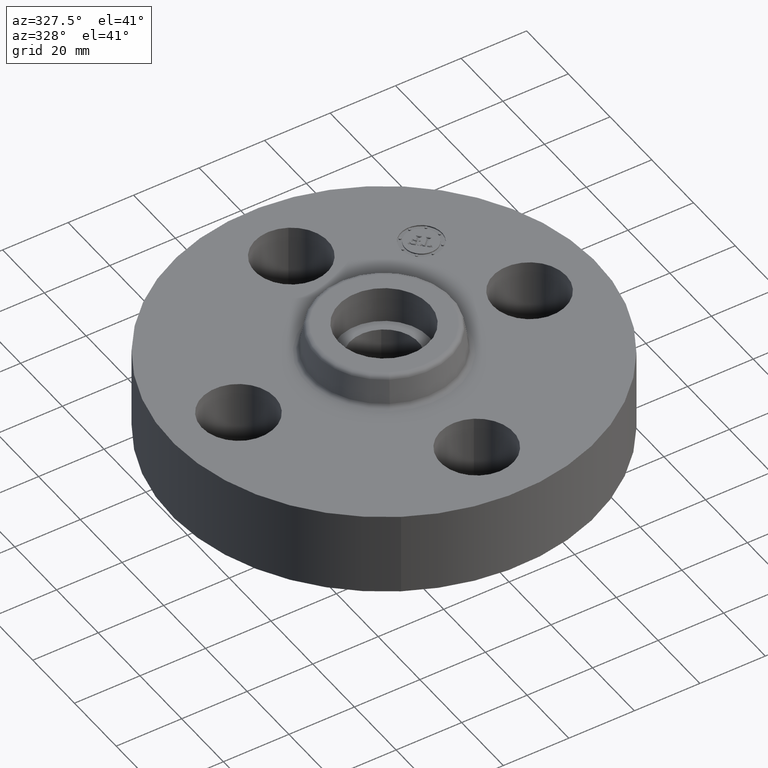
[diagram: clean part render]
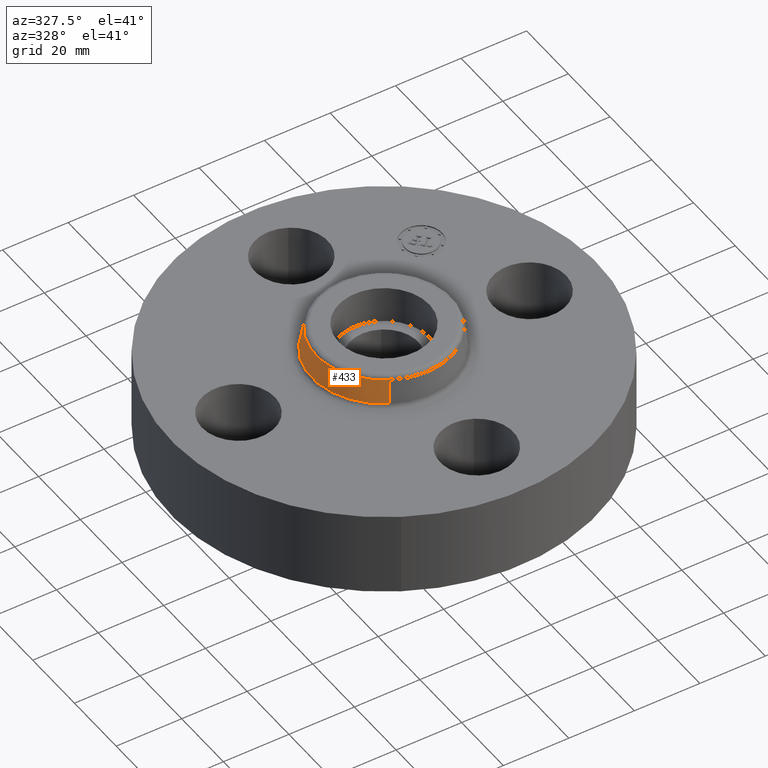
[diagram: same view with one face highlighted and labeled with its STEP entity id]
A machine part, auxiliary view. The second image highlights one B-rep face of the part: STEP entity #433.
In plain terms, the highlighted conical surface has half-angle 10 deg.
Its self-contained STEP definition (entity closure, byte-faithful):
#381=AXIS2_PLACEMENT_3D('Circle Axis2P3D',#379,#380,$) ;
#394=AXIS2_PLACEMENT_3D('Cone Axis2P3D',#391,#392,#393) ;
#424=AXIS2_PLACEMENT_3D('Circle Axis2P3D',#422,#423,$) ;
#352=CARTESIAN_POINT('Vertex',(0.415305974593,0.760212487246,1.04958110934)) ;
#359=CARTESIAN_POINT('Vertex',(-0.415305974593,-0.760212487246,1.04958110934)) ;
#379=CARTESIAN_POINT('Axis2P3D Location',(0.,0.,1.04958110934)) ;
#391=CARTESIAN_POINT('Axis2P3D Location',(0.,0.,1.33041889067)) ;
#396=CARTESIAN_POINT('Line Origine',(0.403435571318,0.7384838598,1.19)) ;
#400=CARTESIAN_POINT('Vertex',(0.391565168043,0.716755232353,1.33041889067)) ;
#407=CARTESIAN_POINT('Vertex',(-0.391565168043,-0.716755232353,1.33041889067)) ;
#410=CARTESIAN_POINT('Line Origine',(-0.403435571318,-0.7384838598,1.19)) ;
#422=CARTESIAN_POINT('Axis2P3D Location',(0.,0.,1.33041889067)) ;
#380=DIRECTION('Axis2P3D Direction',(0.,0.,-0.0393700787402)) ;
#392=DIRECTION('Axis2P3D Direction',(0.,0.,-0.0393700787402)) ;
#393=DIRECTION('Axis2P3D XDirection',(-0.0188750212049,-0.0345504945626,0.)) ;
#397=DIRECTION('Vector Direction',(0.00327761303565,0.00599963041829,-0.03877195878)) ;
#411=DIRECTION('Vector Direction',(-0.00327761303565,-0.00599963041829,-0.03877195878)) ;
#423=DIRECTION('Axis2P3D Direction',(0.,0.,-0.0393700787402)) ;
#398=VECTOR('Line Direction',#397,0.0393700787402) ;
#412=VECTOR('Line Direction',#411,0.0393700787402) ;
#428=ORIENTED_EDGE('',*,*,#383,.F.) ;
#429=ORIENTED_EDGE('',*,*,#414,.T.) ;
#430=ORIENTED_EDGE('',*,*,#426,.T.) ;
#431=ORIENTED_EDGE('',*,*,#402,.F.) ;
#433=ADVANCED_FACE('PartBody',(#432),#395,.T.) ;
#382=CIRCLE('generated circle',#381,0.866257512693) ;
#425=CIRCLE('generated circle',#424,0.816738234644) ;
#395=CONICAL_SURFACE('Cone',#394,0.816738234644,0.174532925199) ;
#383=EDGE_CURVE('',#360,#353,#382,.T.) ;
#402=EDGE_CURVE('',#353,#401,#399,.F.) ;
#414=EDGE_CURVE('',#360,#408,#413,.F.) ;
#426=EDGE_CURVE('',#408,#401,#425,.T.) ;
#427=EDGE_LOOP('',(#428,#429,#430,#431)) ;
#432=FACE_OUTER_BOUND('',#427,.T.) ;
#399=LINE('Line',#396,#398) ;
#413=LINE('Line',#410,#412) ;
#353=VERTEX_POINT('',#352) ;
#360=VERTEX_POINT('',#359) ;
#401=VERTEX_POINT('',#400) ;
#408=VERTEX_POINT('',#407) ;